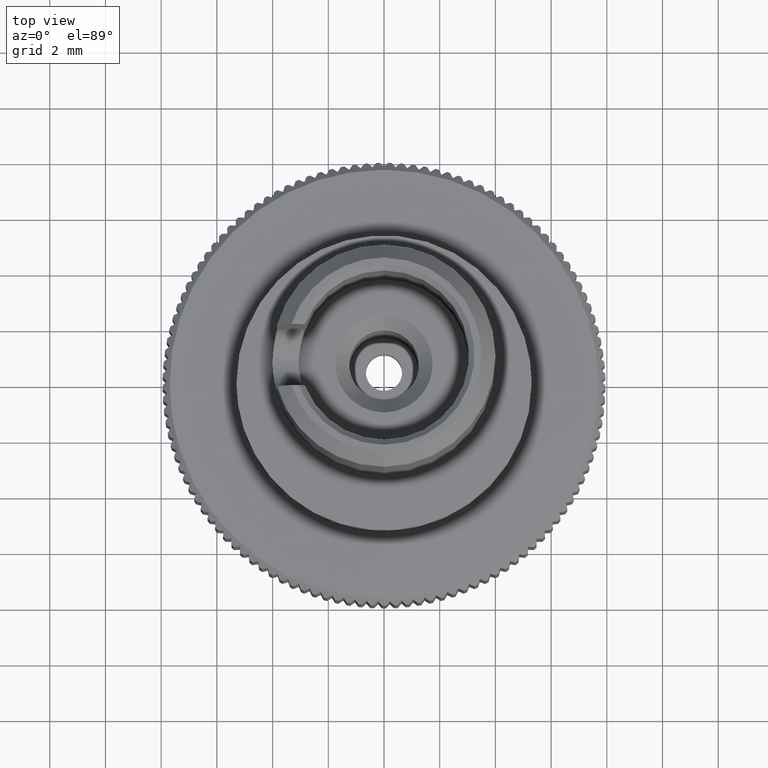
[diagram: clean part render]
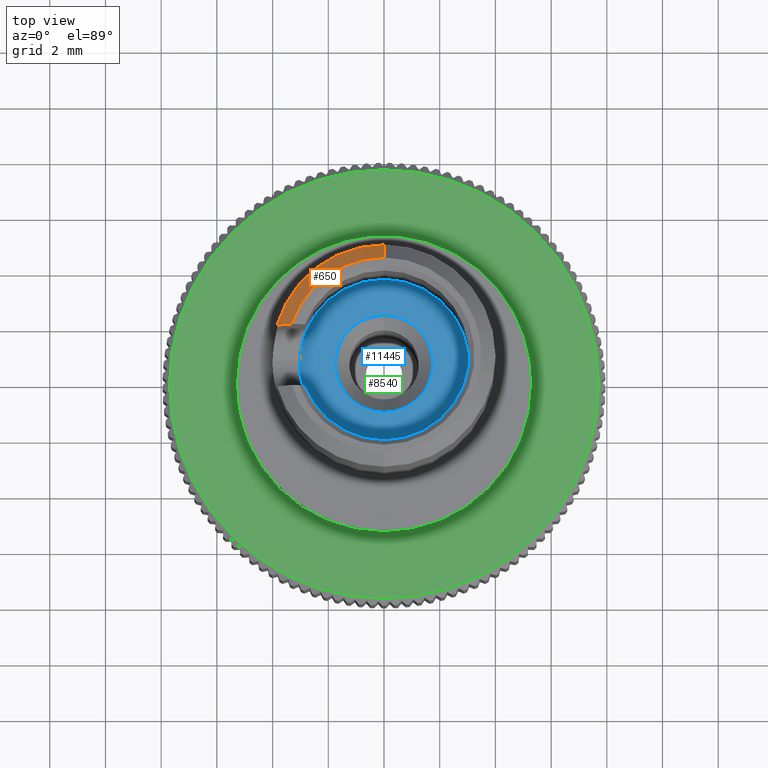
[diagram: same view with three faces highlighted in distinct colors, each labeled with its STEP entity id]
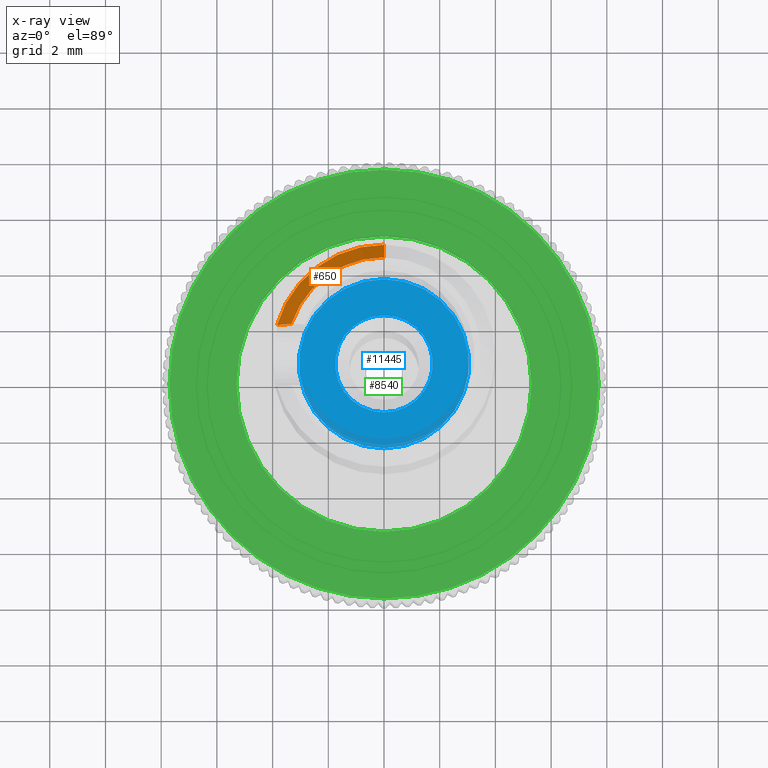
[diagram: x-ray of the same camera — body ghosted, the three highlighted faces saturated]
A machine part, top view with three faces highlighted in distinct colors.
The next image is the same camera in x-ray (body ghosted, the three faces saturated) — at least one of them is partly hidden behind the body in this view.
Their STEP definitions:

[orange] entity #650 — the highlighted conical surface has half-angle 45 deg.
#650 = ADVANCED_FACE ( 'NONE', ( #5979 ), #5257, .T. ) ;
#1137 = CARTESIAN_POINT ( 'NONE',  ( -3.322649545768520785, 2.040305402949233127, 13.24154405128299139 ) ) ;
#1195 = ORIENTED_EDGE ( 'NONE', *, *, #9623, .T. ) ;
#1295 = EDGE_CURVE ( 'NONE', #7772, #11983, #5046, .T. ) ;
#1790 = AXIS2_PLACEMENT_3D ( 'NONE', #1872, #6162, #13680 ) ;
#1833 = CARTESIAN_POINT ( 'NONE',  ( 2.358764014629480996E-31, 0.9430523269859386604, 13.31923373580156067 ) ) ;
#1872 = CARTESIAN_POINT ( 'NONE',  ( 0.000000000000000000, 0.9077388340312130266, 12.82048233774557922 ) ) ;
#2035 = DIRECTION ( 'NONE',  ( 0.000000000000000000, 0.9975027964162092031, -0.07062698593202719477 ) ) ;
#3083 = CIRCLE ( 'NONE', #12740, 3.500000000558781466 ) ;
#3225 = CARTESIAN_POINT ( 'NONE',  ( -1.412483392289889226E-29, 0.9430523269859346636, 13.31923373580150383 ) ) ;
#3390 = CARTESIAN_POINT ( 'NONE',  ( -1.279750473368220906E-16, 4.897750020000000148, 12.53797439399999902 ) ) ;
#4028 = ORIENTED_EDGE ( 'NONE', *, *, #1295, .F. ) ;
#4248 = CIRCLE ( 'NONE', #1790, 4.000000000304424042 ) ;
#4479 = CARTESIAN_POINT ( 'NONE',  ( -3.485400279104693411, 2.029393258175796078, 13.08742597861090751 ) ) ;
#4945 = ORIENTED_EDGE ( 'NONE', *, *, #13148, .T. ) ;
#5046 = B_SPLINE_CURVE_WITH_KNOTS ( 'NONE', 3,
 ( #10950, #4479, #6790, #6723 ),
 .UNSPECIFIED., .F., .F.,
 ( 4, 4 ),
 ( 0.000000000000000000, 1.000000000000000000 ),
 .UNSPECIFIED. ) ;
#5257 = CONICAL_SURFACE ( 'NONE', #13109, 3.500000000558726398, 0.7853981633002439233 ) ;
#5979 = FACE_OUTER_BOUND ( 'NONE', #11754, .T. ) ;
#6162 = DIRECTION ( 'NONE',  ( -0.000000000000000000, 0.07062698593101986166, 0.9975027964162804794 ) ) ;
#6602 = CARTESIAN_POINT ( 'NONE',  ( -3.845776904652796091, 2.004991910551321421, 12.74279265319019316 ) ) ;
#6683 = LINE ( 'NONE', #11104, #7903 ) ;
#6723 = CARTESIAN_POINT ( 'NONE',  ( -3.845776904652796091, 2.004991910551321421, 12.74279265319019316 ) ) ;
#6790 = CARTESIAN_POINT ( 'NONE',  ( -3.659776065405766943, 2.017622093883389311, 12.92117551259176800 ) ) ;
#6817 = DIRECTION ( 'NONE',  ( -1.809840476633426438E-16, 0.6554001708377257263, -0.7552818123494566827 ) ) ;
#7242 = DIRECTION ( 'NONE',  ( 0.000000000000000000, 0.9975027964162092031, -0.07062698593202730579 ) ) ;
#7765 = EDGE_CURVE ( 'NONE', #8709, #7772, #3083, .T. ) ;
#7772 = VERTEX_POINT ( 'NONE', #1137 ) ;
#7903 = VECTOR ( 'NONE', #6817, 1000.000000000000000 ) ;
#8709 = VERTEX_POINT ( 'NONE', #10366 ) ;
#8941 = VERTEX_POINT ( 'NONE', #3390 ) ;
#9623 = EDGE_CURVE ( 'NONE', #8941, #11983, #4248, .T. ) ;
#9954 = ORIENTED_EDGE ( 'NONE', *, *, #7765, .F. ) ;
#10366 = CARTESIAN_POINT ( 'NONE',  ( -6.398752366883053443E-17, 4.434312115000052401, 13.07203928499994383 ) ) ;
#10950 = CARTESIAN_POINT ( 'NONE',  ( -3.322649545768520785, 2.040305402949233127, 13.24154405128299139 ) ) ;
#11104 = CARTESIAN_POINT ( 'NONE',  ( 2.358764014629480996E-31, 4.434312115000001775, 13.07203928500000245 ) ) ;
#11754 = EDGE_LOOP ( 'NONE', ( #9954, #4945, #1195, #4028 ) ) ;
#11812 = DIRECTION ( 'NONE',  ( 2.559500947537984150E-16, 0.07062698593202709763, 0.9975027964162093141 ) ) ;
#11983 = VERTEX_POINT ( 'NONE', #6602 ) ;
#12582 = DIRECTION ( 'NONE',  ( -2.559500947537984150E-16, -0.07062698593202709763, -0.9975027964162093141 ) ) ;
#12740 = AXIS2_PLACEMENT_3D ( 'NONE', #3225, #11812, #2035 ) ;
#13109 = AXIS2_PLACEMENT_3D ( 'NONE', #1833, #12582, #7242 ) ;
#13148 = EDGE_CURVE ( 'NONE', #8709, #8941, #6683, .T. ) ;
#13680 = DIRECTION ( 'NONE',  ( 0.000000000000000000, 0.9975027964162805905, -0.07062698593101973676 ) ) ;

[blue] entity #11445 — the highlighted planar face has unit normal (-0, 0.0706, 0.9975).
#148 = VERTEX_POINT ( 'NONE', #7012 ) ;
#423 = CIRCLE ( 'NONE', #11412, 1.750000000194223082 ) ;
#696 = VERTEX_POINT ( 'NONE', #8153 ) ;
#823 = AXIS2_PLACEMENT_3D ( 'NONE', #3590, #8660, #8861 ) ;
#1326 = DIRECTION ( 'NONE',  ( 0.000000000000000000, -0.9975027964162994643, 0.07062698593075339426 ) ) ;
#1884 = DIRECTION ( 'NONE',  ( 6.890936498074053834E-16, 0.07062698593075319997, 0.9975027964162994643 ) ) ;
#1919 = DIRECTION ( 'NONE',  ( 2.836707407112860962E-16, 0.07062698593101957023, 0.9975027964162804794 ) ) ;
#2125 = DIRECTION ( 'NONE',  ( 0.000000000000000000, -0.9975027964162804794, 0.07062698593101945921 ) ) ;
#2542 = PLANE ( 'NONE',  #6313 ) ;
#3278 = EDGE_CURVE ( 'NONE', #12243, #148, #5304, .T. ) ;
#3590 = CARTESIAN_POINT ( 'NONE',  ( 0.000000000000000000, 0.6746697809940345181, 9.528723109915741674 ) ) ;
#3623 = DIRECTION ( 'NONE',  ( 6.890936498074053834E-16, 0.07062698593075319997, 0.9975027964162994643 ) ) ;
#3707 = VERTEX_POINT ( 'NONE', #13761 ) ;
#4440 = ORIENTED_EDGE ( 'NONE', *, *, #10057, .T. ) ;
#4516 = FACE_OUTER_BOUND ( 'NONE', #12657, .T. ) ;
#4934 = AXIS2_PLACEMENT_3D ( 'NONE', #6495, #1919, #2125 ) ;
#5304 = CIRCLE ( 'NONE', #823, 3.050000000096102948 ) ;
#5559 = CARTESIAN_POINT ( 'NONE',  ( 3.445468247958388805E-16, 0.6746697809228052733, 9.528723109606838548 ) ) ;
#6313 = AXIS2_PLACEMENT_3D ( 'NONE', #8801, #6832, #6696 ) ;
#6495 = CARTESIAN_POINT ( 'NONE',  ( 0.000000000000000000, 0.6746697809940345181, 9.528723109915741674 ) ) ;
#6696 = DIRECTION ( 'NONE',  ( 0.000000000000000000, -0.9975027964112694878, 0.07062698600179212471 ) ) ;
#6832 = DIRECTION ( 'NONE',  ( -0.000000000000000000, 0.07062698600179213859, 0.9975027964112695988 ) ) ;
#6855 = CARTESIAN_POINT ( 'NONE',  ( 3.445468247958388805E-16, 0.6746697809228052733, 9.528723109606838548 ) ) ;
#7012 = CARTESIAN_POINT ( 'NONE',  ( 1.076447516724120354E-31, -2.367713748171484500, 9.744135417012138589 ) ) ;
#7390 = EDGE_CURVE ( 'NONE', #696, #3707, #8912, .T. ) ;
#7977 = EDGE_CURVE ( 'NONE', #3707, #696, #423, .T. ) ;
#8072 = DIRECTION ( 'NONE',  ( 0.000000000000000000, -0.9975027964162994643, 0.07062698593075339426 ) ) ;
#8132 = ORIENTED_EDGE ( 'NONE', *, *, #7390, .F. ) ;
#8153 = CARTESIAN_POINT ( 'NONE',  ( 3.445468247958397680E-16, -1.070960112999457703, 9.652320334999373586 ) ) ;
#8339 = CARTESIAN_POINT ( 'NONE',  ( 3.735172737517119277E-16, 3.717053310159553980, 9.313310802819346534 ) ) ;
#8483 = AXIS2_PLACEMENT_3D ( 'NONE', #6855, #3623, #1326 ) ;
#8527 = ORIENTED_EDGE ( 'NONE', *, *, #3278, .T. ) ;
#8660 = DIRECTION ( 'NONE',  ( 2.836707407112860962E-16, 0.07062698593101957023, 0.9975027964162804794 ) ) ;
#8801 = CARTESIAN_POINT ( 'NONE',  ( -3.086599999999999788, 3.753561912000000778, 9.310725855000001161 ) ) ;
#8861 = DIRECTION ( 'NONE',  ( 0.000000000000000000, -0.9975027964162804794, 0.07062698593101945921 ) ) ;
#8912 = CIRCLE ( 'NONE', #8483, 1.750000000194223082 ) ;
#8967 = CIRCLE ( 'NONE', #4934, 3.050000000096102948 ) ;
#10057 = EDGE_CURVE ( 'NONE', #148, #12243, #8967, .T. ) ;
#11166 = ORIENTED_EDGE ( 'NONE', *, *, #7977, .F. ) ;
#11412 = AXIS2_PLACEMENT_3D ( 'NONE', #5559, #1884, #8072 ) ;
#11445 = ADVANCED_FACE ( 'NONE', ( #12046, #4516 ), #2542, .T. ) ;
#12046 = FACE_BOUND ( 'NONE', #13430, .T. ) ;
#12243 = VERTEX_POINT ( 'NONE', #8339 ) ;
#12657 = EDGE_LOOP ( 'NONE', ( #4440, #8527 ) ) ;
#13430 = EDGE_LOOP ( 'NONE', ( #8132, #11166 ) ) ;
#13761 = CARTESIAN_POINT ( 'NONE',  ( 5.588600146704108280E-16, 2.420299674845066917, 9.405125884214303511 ) ) ;

[green] entity #8540 — the highlighted planar face has unit normal (0, 0, 1).
#124 = FACE_BOUND ( 'NONE', #11550, .T. ) ;
#261 = DIRECTION ( 'NONE',  ( 1.000000000000000000, 0.000000000000000000, 0.000000000000000000 ) ) ;
#477 = CARTESIAN_POINT ( 'NONE',  ( 7.700000000062001249, 9.582861203510611933E-16, 6.499999999937998929 ) ) ;
#600 = CIRCLE ( 'NONE', #8437, 5.299999999999999822 ) ;
#780 = CARTESIAN_POINT ( 'NONE',  ( 5.299999999999999822, 6.490628035480971924E-16, 6.500000000000000888 ) ) ;
#1544 = ORIENTED_EDGE ( 'NONE', *, *, #8414, .T. ) ;
#1721 = CIRCLE ( 'NONE', #11372, 7.700000000062001249 ) ;
#2107 = CARTESIAN_POINT ( 'NONE',  ( 0.000000000000000000, 0.000000000000000000, 6.500000000000000888 ) ) ;
#2209 = ORIENTED_EDGE ( 'NONE', *, *, #3554, .T. ) ;
#2886 = AXIS2_PLACEMENT_3D ( 'NONE', #8609, #4042, #13742 ) ;
#2997 = DIRECTION ( 'NONE',  ( 0.000000000000000000, 0.000000000000000000, -1.000000000000000000 ) ) ;
#3363 = EDGE_CURVE ( 'NONE', #7458, #3882, #1721, .T. ) ;
#3519 = DIRECTION ( 'NONE',  ( -0.000000000000000000, -0.000000000000000000, 1.000000000000000000 ) ) ;
#3554 = EDGE_CURVE ( 'NONE', #8336, #11757, #600, .T. ) ;
#3706 = EDGE_CURVE ( 'NONE', #11757, #8336, #4636, .T. ) ;
#3882 = VERTEX_POINT ( 'NONE', #5328 ) ;
#3996 = DIRECTION ( 'NONE',  ( -1.000000000000000000, 0.000000000000000000, 0.000000000000000000 ) ) ;
#4042 = DIRECTION ( 'NONE',  ( -0.000000000000000000, -0.000000000000000000, 1.000000000000000000 ) ) ;
#4636 = CIRCLE ( 'NONE', #7784, 5.299999999999999822 ) ;
#5104 = CARTESIAN_POINT ( 'NONE',  ( -5.299999999999999822, 0.000000000000000000, 6.500000000000000888 ) ) ;
#5328 = CARTESIAN_POINT ( 'NONE',  ( -7.700000000062001249, 0.000000000000000000, 6.499999999937998929 ) ) ;
#5434 = CARTESIAN_POINT ( 'NONE',  ( 0.000000000000000000, 0.000000000000000000, 6.499999999937998929 ) ) ;
#5525 = PLANE ( 'NONE',  #8054 ) ;
#6579 = ORIENTED_EDGE ( 'NONE', *, *, #3706, .T. ) ;
#6756 = DIRECTION ( 'NONE',  ( -1.000000000000000000, 0.000000000000000000, 0.000000000000000000 ) ) ;
#6845 = FACE_OUTER_BOUND ( 'NONE', #9030, .T. ) ;
#7458 = VERTEX_POINT ( 'NONE', #477 ) ;
#7784 = AXIS2_PLACEMENT_3D ( 'NONE', #11731, #2997, #3996 ) ;
#8054 = AXIS2_PLACEMENT_3D ( 'NONE', #11132, #8747, #261 ) ;
#8336 = VERTEX_POINT ( 'NONE', #5104 ) ;
#8414 = EDGE_CURVE ( 'NONE', #3882, #7458, #11432, .T. ) ;
#8437 = AXIS2_PLACEMENT_3D ( 'NONE', #2107, #11536, #11745 ) ;
#8540 = ADVANCED_FACE ( 'NONE', ( #124, #6845 ), #5525, .T. ) ;
#8609 = CARTESIAN_POINT ( 'NONE',  ( 0.000000000000000000, 0.000000000000000000, 6.499999999937998929 ) ) ;
#8747 = DIRECTION ( 'NONE',  ( 0.000000000000000000, 0.000000000000000000, 1.000000000000000000 ) ) ;
#9030 = EDGE_LOOP ( 'NONE', ( #1544, #12014 ) ) ;
#11132 = CARTESIAN_POINT ( 'NONE',  ( -7.792399999999999771, -7.792399999999999771, 6.500000000000000888 ) ) ;
#11372 = AXIS2_PLACEMENT_3D ( 'NONE', #5434, #3519, #6756 ) ;
#11432 = CIRCLE ( 'NONE', #2886, 7.700000000062001249 ) ;
#11536 = DIRECTION ( 'NONE',  ( 0.000000000000000000, 0.000000000000000000, -1.000000000000000000 ) ) ;
#11550 = EDGE_LOOP ( 'NONE', ( #2209, #6579 ) ) ;
#11731 = CARTESIAN_POINT ( 'NONE',  ( 0.000000000000000000, 0.000000000000000000, 6.500000000000000888 ) ) ;
#11745 = DIRECTION ( 'NONE',  ( -1.000000000000000000, 0.000000000000000000, 0.000000000000000000 ) ) ;
#11757 = VERTEX_POINT ( 'NONE', #780 ) ;
#12014 = ORIENTED_EDGE ( 'NONE', *, *, #3363, .T. ) ;
#13742 = DIRECTION ( 'NONE',  ( -1.000000000000000000, 0.000000000000000000, 0.000000000000000000 ) ) ;